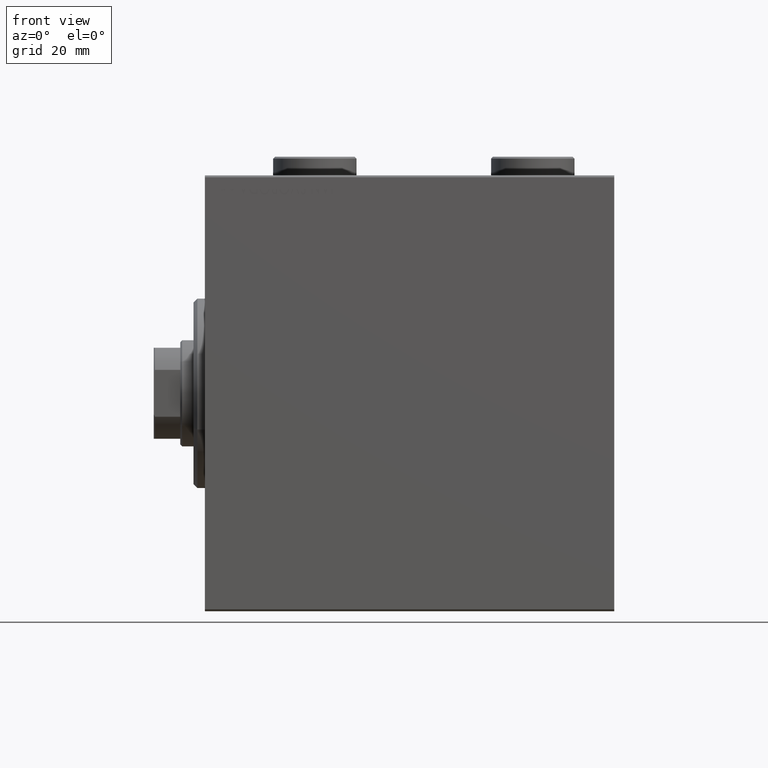
[diagram: clean part render]
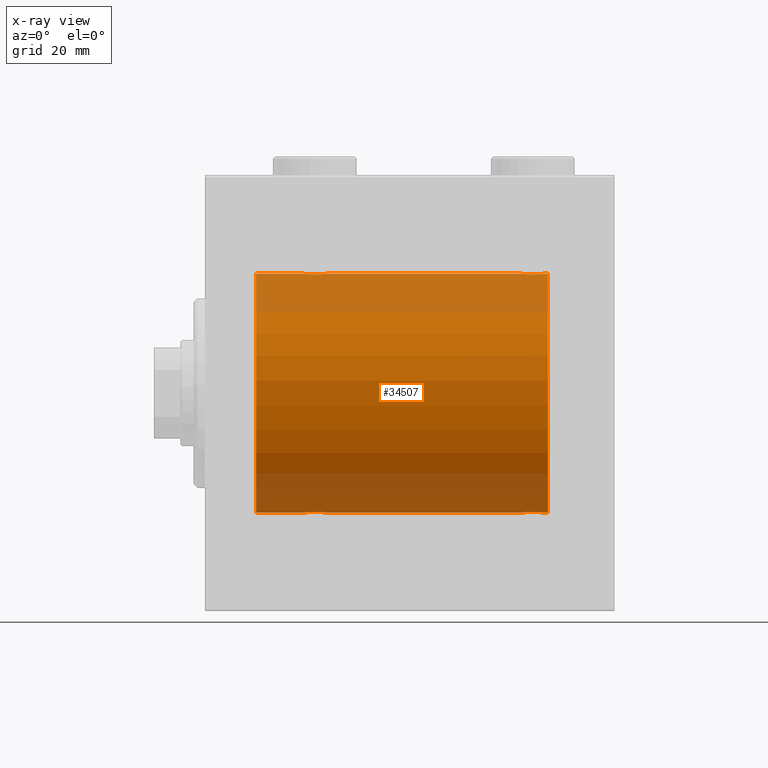
[diagram: x-ray — body ghosted, one internal face saturated and labeled with its STEP entity id]
A machine part, front view, then the same camera in x-ray: the body is ghosted and one INTERNAL B-rep face — a face not visible from any outside direction — is saturated and labeled: STEP entity #34507.
In plain terms, the highlighted cylindrical surface (partial cylindrical patch) has radius 31.5 mm, axis along (-1, -0, -0).
Its self-contained STEP definition (entity closure, byte-faithful):
#8 = EDGE_CURVE ( 'NONE', #21734, #12217, #20686, .T. ) ;
#577 = EDGE_CURVE ( 'NONE', #28053, #6559, #41056, .T. ) ;
#580 = CARTESIAN_POINT ( 'NONE',  ( 84.23904537543867832, -1.981494824113344322, 31.43792153503156683 ) ) ;
#629 = CARTESIAN_POINT ( 'NONE',  ( 31.98101509391517538, -0.3904857149111993775, -31.49817436802766224 ) ) ;
#663 = DIRECTION ( 'NONE',  ( -1.000000000000000000, -0.000000000000000000, -0.000000000000000000 ) ) ;
#733 = EDGE_CURVE ( 'NONE', #44579, #10846, #17607, .T. ) ;
#794 = CARTESIAN_POINT ( 'NONE',  ( 88.88246872266633147, -1.833765390051044442, 31.44700610425689291 ) ) ;
#979 = CARTESIAN_POINT ( 'NONE',  ( 28.79953541025904684, -2.999845816735297266, 31.35683219171744796 ) ) ;
#999 = CARTESIAN_POINT ( 'NONE',  ( 89.10417781274732363, -1.502389880412997147, -31.46458023642405877 ) ) ;
#1204 = CARTESIAN_POINT ( 'NONE',  ( 31.69529642359010424, -1.331741824817659348, 31.47235367475393630 ) ) ;
#1224 = CARTESIAN_POINT ( 'NONE',  ( 87.46944455658521633, -2.845838211243347793, -31.37127560316186603 ) ) ;
#1422 = CARTESIAN_POINT ( 'NONE',  ( 26.09580549261944427, -0.7775502215293862429, 31.49099686045558144 ) ) ;
#1596 = CARTESIAN_POINT ( 'NONE',  ( 26.00000000000000355, -2.117263226567934635E-23, 31.50000000000000000 ) ) ;
#1651 = CARTESIAN_POINT ( 'NONE',  ( 26.39582218725271900, -1.502389880413001144, 31.46458023642405166 ) ) ;
#1746 = CARTESIAN_POINT ( 'NONE',  ( 29.77881912642320827, -2.903733559410679455, -31.36590199989303684 ) ) ;
#1976 = CARTESIAN_POINT ( 'NONE',  ( 29.39534111000094541, -2.980257240990050960, -31.35872356503797320 ) ) ;
#2052 = ORIENTED_EDGE ( 'NONE', *, *, #40375, .T. ) ;
#2315 = CARTESIAN_POINT ( 'NONE',  ( 84.24175498096732895, -1.984587626072091160, -31.43772577203671048 ) ) ;
#3291 = CARTESIAN_POINT ( 'NONE',  ( 29.96944455658523054, -2.845838211243329585, -31.37127560316186603 ) ) ;
#3352 = CARTESIAN_POINT ( 'NONE',  ( 88.32704225370268603, -2.387531469909779158, 31.40957782495775419 ) ) ;
#3784 = CARTESIAN_POINT ( 'NONE',  ( 89.19714238836702691, -1.328004386210309251, -31.47251238182141719 ) ) ;
#4237 = CARTESIAN_POINT ( 'NONE',  ( 89.50000000000001421, -0.1958045626907434222, -31.50000000000000711 ) ) ;
#4254 = CARTESIAN_POINT ( 'NONE',  ( 88.00098156296147067, -2.604888532024798309, 31.39229907792057972 ) ) ;
#4428 = CARTESIAN_POINT ( 'NONE',  ( 28.60465888999904749, -2.980257240990054513, 31.35872356503797320 ) ) ;
#4453 = CARTESIAN_POINT ( 'NONE',  ( 86.70046458974097447, -2.999845816735310589, -31.35683219171744796 ) ) ;
#4600 = ORIENTED_EDGE ( 'NONE', *, *, #8, .F. ) ;
#4675 = CARTESIAN_POINT ( 'NONE',  ( 86.10885452660059514, -2.980809450819716933, -31.35867074198615967 ) ) ;
#4879 = CARTESIAN_POINT ( 'NONE',  ( 31.92020662950040943, -0.7905881588836116691, 31.49214662150068378 ) ) ;
#5106 = CARTESIAN_POINT ( 'NONE',  ( 26.15339536257501507, -0.9669616078781987367, 31.48567319468626735 ) ) ;
#5131 = EDGE_CURVE ( 'NONE', #34145, #29900, #37900, .T. ) ;
#5407 = DIRECTION ( 'NONE',  ( -1.000000000000000000, -0.000000000000000000, -0.000000000000000000 ) ) ;
#5427 = CARTESIAN_POINT ( 'NONE',  ( 28.80417705560560648, -3.000152387858484371, -31.35680286115500337 ) ) ;
#5975 = ORIENTED_EDGE ( 'NONE', *, *, #8188, .T. ) ;
#5988 = CARTESIAN_POINT ( 'NONE',  ( 83.89807859560842473, -1.506272792558335683, -31.46439306106695710 ) ) ;
#6077 = VERTEX_POINT ( 'NONE', #42875 ) ;
#6302 = CARTESIAN_POINT ( 'NONE',  ( 32.00000000000000000, 3.857637396137448068E-15, -31.50000000000000000 ) ) ;
#6336 = LINE ( 'NONE', #20739, #15829 ) ;
#6559 = VERTEX_POINT ( 'NONE', #33162 ) ;
#6651 = CARTESIAN_POINT ( 'NONE',  ( 90.50000000000000000, 3.857637417314162689E-15, -31.50000000000000000 ) ) ;
#6781 = CARTESIAN_POINT ( 'NONE',  ( 84.11498557723071201, -1.830470878313887884, 31.44719957596828053 ) ) ;
#7130 = CARTESIAN_POINT ( 'NONE',  ( 90.50000000000000000, 0.000000000000000000, 0.000000000000000000 ) ) ;
#7470 = CARTESIAN_POINT ( 'NONE',  ( 83.80285761163298730, -1.328004386210315024, 31.47251238182141719 ) ) ;
#7675 = CARTESIAN_POINT ( 'NONE',  ( 88.88501442276927378, -1.830470878313876781, -31.44719957596828763 ) ) ;
#7896 = CARTESIAN_POINT ( 'NONE',  ( 87.27881912642318696, -2.903733559410696774, -31.36590199989303684 ) ) ;
#8188 = EDGE_CURVE ( 'NONE', #44579, #34145, #24949, .T. ) ;
#8770 = CARTESIAN_POINT ( 'NONE',  ( 29.96515729810641204, -2.847307171789037028, 31.37114183851420890 ) ) ;
#8819 = DIRECTION ( 'NONE',  ( -1.000000000000000000, 0.000000000000000000, 0.000000000000000000 ) ) ;
#9321 = CARTESIAN_POINT ( 'NONE',  ( 26.07979337049960478, -0.7905881588836203289, -31.49214662150069088 ) ) ;
#10220 = CARTESIAN_POINT ( 'NONE',  ( 87.27469094434374597, -2.904836261170115730, 31.36579955910872997 ) ) ;
#10690 = CARTESIAN_POINT ( 'NONE',  ( 86.69582294439439352, -3.000152387858496805, 31.35680286115500337 ) ) ;
#10846 = VERTEX_POINT ( 'NONE', #30550 ) ;
#11128 = CARTESIAN_POINT ( 'NONE',  ( 84.99543714992996968, -2.602826974226406076, 31.39247100434484850 ) ) ;
#11308 = CARTESIAN_POINT ( 'NONE',  ( 29.77469094434372821, -2.904836261170106404, 31.36579955910873707 ) ) ;
#11334 = CARTESIAN_POINT ( 'NONE',  ( 89.40419450738056639, -0.7775502215293851327, -31.49099686045559565 ) ) ;
#11551 = CARTESIAN_POINT ( 'NONE',  ( 89.48101509391514696, -0.3904857149112013204, -31.49817436802766224 ) ) ;
#11681 = EDGE_LOOP ( 'NONE', ( #21345, #5975, #18591, #43921, #29106, #11881, #27048, #39002, #2052, #4600, #20526, #11850 ) ) ;
#11850 = ORIENTED_EDGE ( 'NONE', *, *, #31605, .F. ) ;
#11881 = ORIENTED_EDGE ( 'NONE', *, *, #19496, .T. ) ;
#11978 = CARTESIAN_POINT ( 'NONE',  ( 26.01898490608483527, -0.3904857149112033743, 31.49817436802766935 ) ) ;
#12205 = CARTESIAN_POINT ( 'NONE',  ( 30.98143462873041898, -2.261012035264782227, 31.41905495618429356 ) ) ;
#12217 = VERTEX_POINT ( 'NONE', #27222 ) ;
#12299 = CARTESIAN_POINT ( 'NONE',  ( 27.67134585312494011, -2.696917666262907520, -31.38442820068732786 ) ) ;
#12400 = CARTESIAN_POINT ( 'NONE',  ( 84.67295774629731397, -2.387531469909792481, -31.40957782495775419 ) ) ;
#12760 = CARTESIAN_POINT ( 'NONE',  ( 31.38501442276926667, -1.830470878313872563, -31.44719957596828763 ) ) ;
#13239 = AXIS2_PLACEMENT_3D ( 'NONE', #36099, #8819, #29657 ) ;
#13306 = EDGE_CURVE ( 'NONE', #21734, #6077, #40304, .T. ) ;
#13313 = CARTESIAN_POINT ( 'NONE',  ( 83.49999999999998579, -1.354660151018645615E-14, -31.50000000000000000 ) ) ;
#13884 = CARTESIAN_POINT ( 'NONE',  ( 83.59580549261943361, -0.7775502215293907948, 31.49099686045558855 ) ) ;
#13948 = AXIS2_PLACEMENT_3D ( 'NONE', #38422, #35433, #35876 ) ;
#14000 = FACE_OUTER_BOUND ( 'NONE', #11681, .T. ) ;
#14109 = CARTESIAN_POINT ( 'NONE',  ( 84.51539640075337445, -2.258226318633800300, 31.41925597582826413 ) ) ;
#14561 = CARTESIAN_POINT ( 'NONE',  ( 85.72118087357682725, -2.903733559410697662, 31.36590199989305106 ) ) ;
#14777 = CARTESIAN_POINT ( 'NONE',  ( 89.42020662950039878, -0.7905881588836165541, 31.49214662150069088 ) ) ;
#14878 = VECTOR ( 'NONE', #663, 1000.000000000000000 ) ;
#14979 = CARTESIAN_POINT ( 'NONE',  ( 88.00456285007000190, -2.602826974226410961, -31.39247100434486271 ) ) ;
#15082 = EDGE_CURVE ( 'NONE', #18763, #6559, #6336, .T. ) ;
#15288 = VECTOR ( 'NONE', #5407, 1000.000000000000000 ) ;
#15401 = CARTESIAN_POINT ( 'NONE',  ( 32.00000000000001421, -0.3965830985361748495, 31.50000000000001421 ) ) ;
#15633 = CARTESIAN_POINT ( 'NONE',  ( 28.03055544341478722, -2.845838211243333138, 31.37127560316186603 ) ) ;
#15729 = CARTESIAN_POINT ( 'NONE',  ( 28.03484270189360217, -2.847307171789034808, -31.37114183851420179 ) ) ;
#15829 = VECTOR ( 'NONE', #37958, 1000.000000000000000 ) ;
#15957 = CARTESIAN_POINT ( 'NONE',  ( 27.49901843703856130, -2.604888532024793424, -31.39229907792058683 ) ) ;
#16183 = CARTESIAN_POINT ( 'NONE',  ( 31.60417781274729165, -1.502389880412996259, -31.46458023642406587 ) ) ;
#17260 = CARTESIAN_POINT ( 'NONE',  ( 90.50000000000000000, 0.000000000000000000, 31.50000000000000000 ) ) ;
#17316 = CARTESIAN_POINT ( 'NONE',  ( 89.19529642359012200, -1.331741824817663122, 31.47235367475394341 ) ) ;
#17607 = CIRCLE ( 'NONE', #13239, 31.50000000000000000 ) ;
#17749 = CARTESIAN_POINT ( 'NONE',  ( 88.48460359924666818, -2.258226318633792751, -31.41925597582826413 ) ) ;
#17995 = CARTESIAN_POINT ( 'NONE',  ( 83.89582218725269058, -1.502389880413010026, 31.46458023642405877 ) ) ;
#18218 = CARTESIAN_POINT ( 'NONE',  ( 88.75824501903265684, -1.984587626072075617, 31.43772577203671759 ) ) ;
#18390 = CARTESIAN_POINT ( 'NONE',  ( 29.39114547339941552, -2.980809450819701834, 31.35867074198615967 ) ) ;
#18591 = ORIENTED_EDGE ( 'NONE', *, *, #5131, .T. ) ;
#18616 = CARTESIAN_POINT ( 'NONE',  ( 27.49543714993000876, -2.602826974226395862, 31.39247100434485560 ) ) ;
#18763 = VERTEX_POINT ( 'NONE', #1596 ) ;
#19057 = CARTESIAN_POINT ( 'NONE',  ( 26.30285761163300151, -1.328004386210305698, 31.47251238182140298 ) ) ;
#19095 = CARTESIAN_POINT ( 'NONE',  ( 89.50000000000000000, 3.857637396143758955E-15, -31.50000000000000000 ) ) ;
#19294 = CARTESIAN_POINT ( 'NONE',  ( 26.00000000000000355, -2.117263226567934635E-23, 31.50000000000000000 ) ) ;
#19386 = CARTESIAN_POINT ( 'NONE',  ( 26.00000000000000355, -0.3965830985361813443, -31.50000000000000711 ) ) ;
#19496 = EDGE_CURVE ( 'NONE', #44435, #28053, #41046, .T. ) ;
#19844 = CARTESIAN_POINT ( 'NONE',  ( 26.61753127733371116, -1.833765390051047106, -31.44700610425690002 ) ) ;
#20408 = CYLINDRICAL_SURFACE ( 'NONE', #22051, 31.50000000000000000 ) ;
#20416 = DIRECTION ( 'NONE',  ( -1.000000000000000000, -0.000000000000000000, -0.000000000000000000 ) ) ;
#20526 = ORIENTED_EDGE ( 'NONE', *, *, #13306, .T. ) ;
#20675 = CARTESIAN_POINT ( 'NONE',  ( 26.39807859560848158, -1.506272792558332130, -31.46439306106697131 ) ) ;
#20686 = LINE ( 'NONE', #17260, #25640 ) ;
#20739 = CARTESIAN_POINT ( 'NONE',  ( 90.50000000000000000, 0.000000000000000000, 31.50000000000000000 ) ) ;
#20743 = CARTESIAN_POINT ( 'NONE',  ( 84.66956308512997964, -2.384935707362449087, 31.40977595730572958 ) ) ;
#20973 = CARTESIAN_POINT ( 'NONE',  ( 83.49999999999998579, -0.1958045626907495562, 31.50000000000000000 ) ) ;
#21345 = ORIENTED_EDGE ( 'NONE', *, *, #733, .F. ) ;
#21653 = CARTESIAN_POINT ( 'NONE',  ( 87.82865414687509542, -2.696917666262913738, 31.38442820068732075 ) ) ;
#21734 = VERTEX_POINT ( 'NONE', #27287 ) ;
#21854 = CARTESIAN_POINT ( 'NONE',  ( 86.89534111000095606, -2.980257240990069167, -31.35872356503797320 ) ) ;
#22050 = CARTESIAN_POINT ( 'NONE',  ( 27.16956308512997964, -2.384935707362437096, 31.40977595730572958 ) ) ;
#22051 = AXIS2_PLACEMENT_3D ( 'NONE', #7130, #41958, #31403 ) ;
#23034 = CARTESIAN_POINT ( 'NONE',  ( 90.50000000000000000, 3.857637417314162689E-15, -31.50000000000000000 ) ) ;
#23278 = VECTOR ( 'NONE', #37614, 1000.000000000000000 ) ;
#23280 = CARTESIAN_POINT ( 'NONE',  ( 30.98460359924664687, -2.258226318633781649, -31.41925597582825702 ) ) ;
#23366 = EDGE_CURVE ( 'NONE', #28415, #44435, #25455, .T. ) ;
#23386 = CARTESIAN_POINT ( 'NONE',  ( 83.49999999999998579, -0.3965830985361872840, -31.50000000000000711 ) ) ;
#23855 = LINE ( 'NONE', #27072, #42493 ) ;
#24113 = CARTESIAN_POINT ( 'NONE',  ( 26.74175498096735026, -1.984587626072075617, -31.43772577203673180 ) ) ;
#24403 = CARTESIAN_POINT ( 'NONE',  ( 86.10465888999905815, -2.980257240990066947, 31.35872356503798031 ) ) ;
#24638 = CARTESIAN_POINT ( 'NONE',  ( 89.49999999999998579, -0.3965830985361750161, 31.50000000000000000 ) ) ;
#24791 = B_SPLINE_CURVE_WITH_KNOTS ( 'NONE', 3,
 ( #19294, #32818, #11978, #1422, #5106, #19057, #1651, #33045, #33279, #29830, #22050, #18616, #32591, #15633, #29150, #4428, #979, #36277, #18390, #11308, #8770, #29379, #29609, #32371, #12205, #26172, #42924, #40169, #1204, #4879, #15401, #26630 ),
 .UNSPECIFIED., .F., .F.,
 ( 4, 2, 2, 2, 2, 2, 2, 2, 2, 2, 2, 2, 2, 2, 2, 4 ),
 ( 0.009384682587134639611, 0.009971088165454038837, 0.01055749374377343980, 0.01114389932209284076, 0.01173030490041223999, 0.01231671047873163921, 0.01290311605705104017, 0.01348952163537044113, 0.01407592721368984036, 0.01466233279200923958, 0.01524873837032864055, 0.01583514394864804151, 0.01642154952696744247, 0.01700795510528683996, 0.01759436068360624092, 0.01876717184024503243 ),
 .UNSPECIFIED. ) ;
#24949 = LINE ( 'NONE', #32056, #14878 ) ;
#25064 = CARTESIAN_POINT ( 'NONE',  ( 89.34660463742501690, -0.9669616078781998469, -31.48567319468627446 ) ) ;
#25352 = CARTESIAN_POINT ( 'NONE',  ( 31.90419450738055218, -0.7775502215293819130, -31.49099686045559565 ) ) ;
#25455 = B_SPLINE_CURVE_WITH_KNOTS ( 'NONE', 3,
 ( #43015, #35697, #629, #25352, #39349, #27790, #16183, #12760, #45210, #23280, #44147, #43694, #33827, #3291, #1746, #1976, #26721, #5427, #36821, #44992, #15729, #12299, #15957, #38116, #40261, #24113, #19844, #20675, #40720, #9321, #19386, #41555 ),
 .UNSPECIFIED., .F., .F.,
 ( 4, 2, 2, 2, 2, 2, 2, 2, 2, 2, 2, 2, 2, 2, 2, 4 ),
 ( 0.009384682587134662163, 0.009971088165454068328, 0.01055749374377347449, 0.01114389932209288066, 0.01173030490041228682, 0.01231671047873168605, 0.01290311605705108527, 0.01348952163537048277, 0.01407592721368988199, 0.01466233279200928122, 0.01524873837032868044, 0.01583514394864807967, 0.01642154952696747716, 0.01700795510528687812, 0.01759436068360627908, 0.01876717184024507407 ),
 .UNSPECIFIED. ) ;
#25507 = CARTESIAN_POINT ( 'NONE',  ( 88.33043691486999194, -2.384935707362452195, -31.40977595730572247 ) ) ;
#25640 = VECTOR ( 'NONE', #31917, 1000.000000000000000 ) ;
#26068 = EDGE_CURVE ( 'NONE', #29900, #28415, #33117, .T. ) ;
#26172 = CARTESIAN_POINT ( 'NONE',  ( 31.25824501903266039, -1.984587626072074285, 31.43772577203672469 ) ) ;
#26630 = CARTESIAN_POINT ( 'NONE',  ( 32.00000000000000000, -3.906065418435112189E-16, 31.50000000000000000 ) ) ;
#26721 = CARTESIAN_POINT ( 'NONE',  ( 29.20046458974095671, -2.999845816735294157, -31.35683219171744085 ) ) ;
#27048 = ORIENTED_EDGE ( 'NONE', *, *, #577, .T. ) ;
#27072 = CARTESIAN_POINT ( 'NONE',  ( 90.50000000000000000, 0.000000000000000000, 31.50000000000000000 ) ) ;
#27222 = CARTESIAN_POINT ( 'NONE',  ( 32.00000000000000000, -3.906065418435112189E-16, 31.50000000000000000 ) ) ;
#27287 = CARTESIAN_POINT ( 'NONE',  ( 83.49999999999998579, -2.116947682205846230E-23, 31.50000000000000000 ) ) ;
#27790 = CARTESIAN_POINT ( 'NONE',  ( 31.69714238836700915, -1.328004386210301480, -31.47251238182141009 ) ) ;
#27849 = CARTESIAN_POINT ( 'NONE',  ( 89.10192140439151842, -1.506272792558327245, 31.46439306106695710 ) ) ;
#28053 = VERTEX_POINT ( 'NONE', #36614 ) ;
#28084 = CARTESIAN_POINT ( 'NONE',  ( 85.16760041900836598, -2.695056442718549494, 31.38458855656185875 ) ) ;
#28311 = CARTESIAN_POINT ( 'NONE',  ( 83.51898490608482462, -0.3904857149112073711, 31.49817436802766935 ) ) ;
#28415 = VERTEX_POINT ( 'NONE', #6302 ) ;
#28525 = CARTESIAN_POINT ( 'NONE',  ( 86.29953541025901131, -2.999845816735307036, 31.35683219171744796 ) ) ;
#28953 = CARTESIAN_POINT ( 'NONE',  ( 86.30417705560559227, -3.000152387858500802, -31.35680286115499626 ) ) ;
#29106 = ORIENTED_EDGE ( 'NONE', *, *, #23366, .T. ) ;
#29150 = CARTESIAN_POINT ( 'NONE',  ( 28.22118087357680238, -2.903733559410683895, 31.36590199989303684 ) ) ;
#29174 = CARTESIAN_POINT ( 'NONE',  ( 85.72530905565625403, -2.904836261170121947, -31.36579955910872286 ) ) ;
#29379 = CARTESIAN_POINT ( 'NONE',  ( 30.32865414687508832, -2.696917666262907520, 31.38442820068731365 ) ) ;
#29609 = CARTESIAN_POINT ( 'NONE',  ( 30.50098156296146712, -2.604888532024788983, 31.39229907792058683 ) ) ;
#29657 = DIRECTION ( 'NONE',  ( 0.000000000000000000, 0.000000000000000000, 1.000000000000000000 ) ) ;
#29830 = CARTESIAN_POINT ( 'NONE',  ( 27.01539640075335669, -2.258226318633785201, 31.41925597582825702 ) ) ;
#29900 = VERTEX_POINT ( 'NONE', #43030 ) ;
#30550 = CARTESIAN_POINT ( 'NONE',  ( 90.50000000000000000, 0.000000000000000000, 31.50000000000000000 ) ) ;
#31403 = DIRECTION ( 'NONE',  ( 0.000000000000000000, 0.000000000000000000, 1.000000000000000000 ) ) ;
#31605 = EDGE_CURVE ( 'NONE', #10846, #6077, #23855, .T. ) ;
#31917 = DIRECTION ( 'NONE',  ( -1.000000000000000000, -0.000000000000000000, -0.000000000000000000 ) ) ;
#32056 = CARTESIAN_POINT ( 'NONE',  ( 90.50000000000000000, 3.857637417314162689E-15, -31.50000000000000000 ) ) ;
#32173 = CARTESIAN_POINT ( 'NONE',  ( 87.83239958099163402, -2.695056442718546830, -31.38458855656186230 ) ) ;
#32371 = CARTESIAN_POINT ( 'NONE',  ( 30.82704225370267892, -2.387531469909770276, 31.40957782495776129 ) ) ;
#32491 = CARTESIAN_POINT ( 'NONE',  ( 26.00000000000000355, -6.595038141055444136E-15, -31.50000000000000000 ) ) ;
#32591 = CARTESIAN_POINT ( 'NONE',  ( 27.66760041900836953, -2.695056442718533507, 31.38458855656185875 ) ) ;
#32818 = CARTESIAN_POINT ( 'NONE',  ( 26.00000000000001066, -0.1958045626907463088, 31.50000000000000711 ) ) ;
#33045 = CARTESIAN_POINT ( 'NONE',  ( 26.61498557723073333, -1.830470878313877892, 31.44719957596828053 ) ) ;
#33117 = LINE ( 'NONE', #23034, #15288 ) ;
#33162 = CARTESIAN_POINT ( 'NONE',  ( 13.49999999999999822, 0.000000000000000000, 31.50000000000000000 ) ) ;
#33279 = CARTESIAN_POINT ( 'NONE',  ( 26.73904537543869608, -1.981494824113328779, 31.43792153503155973 ) ) ;
#33473 = CARTESIAN_POINT ( 'NONE',  ( 84.51856537126954549, -2.261012035264799103, -31.41905495618427224 ) ) ;
#33827 = CARTESIAN_POINT ( 'NONE',  ( 30.33239958099164824, -2.695056442718529954, -31.38458855656185875 ) ) ;
#33937 = CARTESIAN_POINT ( 'NONE',  ( 83.80470357640989221, -1.331741824817675113, -31.47235367475394341 ) ) ;
#34145 = VERTEX_POINT ( 'NONE', #19095 ) ;
#34507 = ADVANCED_FACE ( 'NONE', ( #14000 ), #20408, .F. ) ;
#34975 = CARTESIAN_POINT ( 'NONE',  ( 88.48143462873041187, -2.261012035264784892, 31.41905495618427935 ) ) ;
#35433 = DIRECTION ( 'NONE',  ( -1.000000000000000000, 0.000000000000000000, 0.000000000000000000 ) ) ;
#35653 = CARTESIAN_POINT ( 'NONE',  ( 86.89114547339943329, -2.980809450819711159, 31.35867074198615967 ) ) ;
#35697 = CARTESIAN_POINT ( 'NONE',  ( 32.00000000000001421, -0.1958045626907418957, -31.50000000000000711 ) ) ;
#35876 = DIRECTION ( 'NONE',  ( 0.000000000000000000, 0.000000000000000000, 1.000000000000000000 ) ) ;
#36099 = CARTESIAN_POINT ( 'NONE',  ( 90.50000000000000000, 0.000000000000000000, 0.000000000000000000 ) ) ;
#36277 = CARTESIAN_POINT ( 'NONE',  ( 29.19582294439440417, -3.000152387858486147, 31.35680286115499626 ) ) ;
#36614 = CARTESIAN_POINT ( 'NONE',  ( 13.49999999999999822, 3.857637417314162689E-15, -31.50000000000000000 ) ) ;
#36821 = CARTESIAN_POINT ( 'NONE',  ( 28.60885452660059869, -2.980809450819698725, -31.35867074198615256 ) ) ;
#37614 = DIRECTION ( 'NONE',  ( -1.000000000000000000, -0.000000000000000000, -0.000000000000000000 ) ) ;
#37900 = B_SPLINE_CURVE_WITH_KNOTS ( 'NONE', 3,
 ( #42505, #4237, #11551, #11334, #25064, #3784, #999, #7675, #42723, #17749, #25507, #14979, #32173, #1224, #7896, #21854, #4453, #28953, #4675, #29174, #42944, #39502, #43168, #12400, #33473, #2315, #44260, #5988, #33937, #44702, #23386, #13313 ),
 .UNSPECIFIED., .F., .F.,
 ( 4, 2, 2, 2, 2, 2, 2, 2, 2, 2, 2, 2, 2, 2, 2, 4 ),
 ( 0.009384682587134677775, 0.009971088165454078736, 0.01055749374377348143, 0.01114389932209288239, 0.01173030490041228509, 0.01231671047873168778, 0.01290311605705108874, 0.01348952163537048970, 0.01407592721368989067, 0.01466233279200929336, 0.01524873837032869606, 0.01583514394864809702, 0.01642154952696749798, 0.01700795510528689894, 0.01759436068360629990, 0.01876717184024510529 ),
 .UNSPECIFIED. ) ;
#37958 = DIRECTION ( 'NONE',  ( -1.000000000000000000, -0.000000000000000000, -0.000000000000000000 ) ) ;
#38116 = CARTESIAN_POINT ( 'NONE',  ( 27.17295774629732819, -2.387531469909775605, -31.40957782495775419 ) ) ;
#38422 = CARTESIAN_POINT ( 'NONE',  ( 13.49999999999999822, 0.000000000000000000, 0.000000000000000000 ) ) ;
#39002 = ORIENTED_EDGE ( 'NONE', *, *, #15082, .F. ) ;
#39084 = CARTESIAN_POINT ( 'NONE',  ( 87.46515729810640494, -2.847307171789044133, 31.37114183851420890 ) ) ;
#39349 = CARTESIAN_POINT ( 'NONE',  ( 31.84660463742499559, -0.9669616078781945179, -31.48567319468626735 ) ) ;
#39502 = CARTESIAN_POINT ( 'NONE',  ( 85.17134585312489037, -2.696917666262924840, -31.38442820068731365 ) ) ;
#40169 = CARTESIAN_POINT ( 'NONE',  ( 31.60192140439154684, -1.506272792558323470, 31.46439306106697131 ) ) ;
#40261 = CARTESIAN_POINT ( 'NONE',  ( 27.01856537126958813, -2.261012035264781783, -31.41905495618428645 ) ) ;
#40304 = B_SPLINE_CURVE_WITH_KNOTS ( 'NONE', 3,
 ( #42523, #20973, #28311, #13884, #42303, #7470, #17995, #6781, #580, #14109, #20743, #11128, #28084, #42079, #14561, #24403, #28525, #10690, #35653, #10220, #39084, #21653, #4254, #3352, #34975, #18218, #794, #27849, #17316, #14777, #24638, #41840 ),
 .UNSPECIFIED., .F., .F.,
 ( 4, 2, 2, 2, 2, 2, 2, 2, 2, 2, 2, 2, 2, 2, 2, 4 ),
 ( 0.009384682587134660428, 0.009971088165454063124, 0.01055749374377346582, 0.01114389932209286851, 0.01173030490041227121, 0.01231671047873167217, 0.01290311605705107313, 0.01348952163537047583, 0.01407592721368987679, 0.01466233279200927775, 0.01524873837032867871, 0.01583514394864807967, 0.01642154952696748410, 0.01700795510528688506, 0.01759436068360628602, 0.01876717184024507407 ),
 .UNSPECIFIED. ) ;
#40375 = EDGE_CURVE ( 'NONE', #18763, #12217, #24791, .T. ) ;
#40720 = CARTESIAN_POINT ( 'NONE',  ( 26.30470357640989576, -1.331741824817665343, -31.47235367475392920 ) ) ;
#41046 = LINE ( 'NONE', #6651, #23278 ) ;
#41056 = CIRCLE ( 'NONE', #13948, 31.50000000000000000 ) ;
#41197 = CARTESIAN_POINT ( 'NONE',  ( 90.50000000000000000, 3.857637417314162689E-15, -31.50000000000000000 ) ) ;
#41555 = CARTESIAN_POINT ( 'NONE',  ( 26.00000000000000355, -6.595038141055444136E-15, -31.50000000000000000 ) ) ;
#41840 = CARTESIAN_POINT ( 'NONE',  ( 89.50000000000000000, -2.415502498297804861E-16, 31.50000000000000000 ) ) ;
#41958 = DIRECTION ( 'NONE',  ( -1.000000000000000000, -0.000000000000000000, -0.000000000000000000 ) ) ;
#42079 = CARTESIAN_POINT ( 'NONE',  ( 85.53055544341479788, -2.845838211243349569, 31.37127560316188024 ) ) ;
#42303 = CARTESIAN_POINT ( 'NONE',  ( 83.65339536257499731, -0.9669616078782070634, 31.48567319468626735 ) ) ;
#42493 = VECTOR ( 'NONE', #20416, 1000.000000000000000 ) ;
#42505 = CARTESIAN_POINT ( 'NONE',  ( 89.50000000000000000, 3.857637396143758955E-15, -31.50000000000000000 ) ) ;
#42523 = CARTESIAN_POINT ( 'NONE',  ( 83.49999999999998579, -2.116947682205846230E-23, 31.50000000000000000 ) ) ;
#42723 = CARTESIAN_POINT ( 'NONE',  ( 88.76095462456133589, -1.981494824113334774, -31.43792153503157394 ) ) ;
#42875 = CARTESIAN_POINT ( 'NONE',  ( 89.50000000000000000, -2.415502498297804861E-16, 31.50000000000000000 ) ) ;
#42924 = CARTESIAN_POINT ( 'NONE',  ( 31.38246872266631371, -1.833765390051040223, 31.44700610425690712 ) ) ;
#42944 = CARTESIAN_POINT ( 'NONE',  ( 85.53484270189359506, -2.847307171789053903, -31.37114183851420179 ) ) ;
#43015 = CARTESIAN_POINT ( 'NONE',  ( 32.00000000000000000, 3.857637396137448068E-15, -31.50000000000000000 ) ) ;
#43030 = CARTESIAN_POINT ( 'NONE',  ( 83.49999999999998579, -1.354660151018645615E-14, -31.50000000000000000 ) ) ;
#43168 = CARTESIAN_POINT ( 'NONE',  ( 84.99901843703854354, -2.604888532024810299, -31.39229907792057972 ) ) ;
#43694 = CARTESIAN_POINT ( 'NONE',  ( 30.50456285006998769, -2.602826974226392309, -31.39247100434485560 ) ) ;
#43921 = ORIENTED_EDGE ( 'NONE', *, *, #26068, .T. ) ;
#44147 = CARTESIAN_POINT ( 'NONE',  ( 30.83043691487002746, -2.384935707362433988, -31.40977595730572958 ) ) ;
#44260 = CARTESIAN_POINT ( 'NONE',  ( 84.11753127733369695, -1.833765390051052657, -31.44700610425689291 ) ) ;
#44435 = VERTEX_POINT ( 'NONE', #32491 ) ;
#44579 = VERTEX_POINT ( 'NONE', #41197 ) ;
#44702 = CARTESIAN_POINT ( 'NONE',  ( 83.57979337049955859, -0.7905881588836273233, -31.49214662150069088 ) ) ;
#44992 = CARTESIAN_POINT ( 'NONE',  ( 28.22530905565627179, -2.904836261170103739, -31.36579955910872286 ) ) ;
#45210 = CARTESIAN_POINT ( 'NONE',  ( 31.26095462456130747, -1.981494824113326114, -31.43792153503156683 ) ) ;